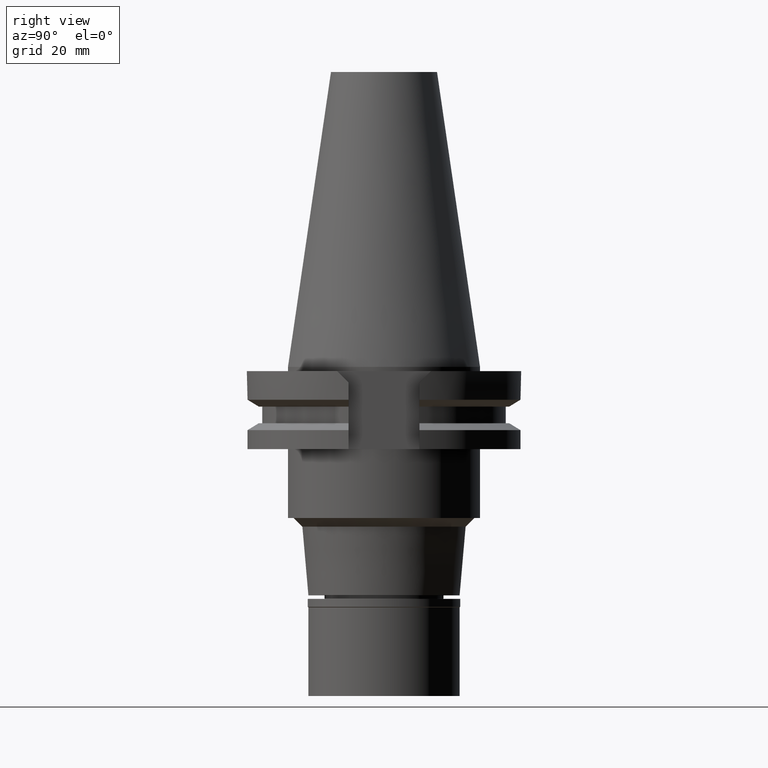
[diagram: clean part render]
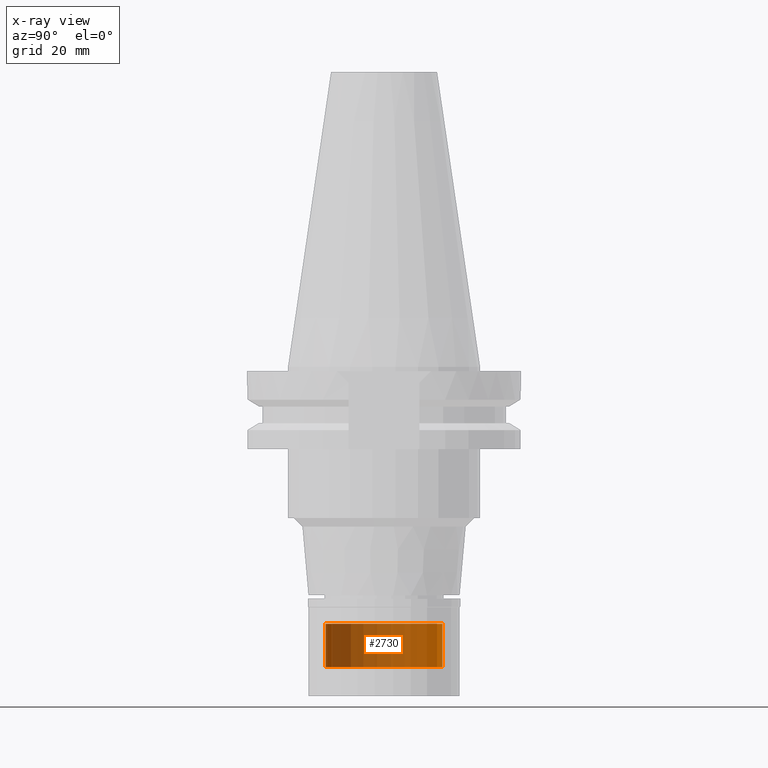
[diagram: x-ray — body ghosted, one internal face saturated and labeled with its STEP entity id]
A machine part, right view, then the same camera in x-ray: the body is ghosted and one INTERNAL B-rep face — a face not visible from any outside direction — is saturated and labeled: STEP entity #2730.
In plain terms, the highlighted cylindrical surface (partial cylindrical patch) has radius 13.5 mm, axis along (0, 0, -1).
Its self-contained STEP definition (entity closure, byte-faithful):
#18 = VERTEX_POINT ( 'NONE', #2397 ) ;
#111 = VERTEX_POINT ( 'NONE', #1337 ) ;
#113 = CARTESIAN_POINT ( 'NONE',  ( 0.0000000000000000000, 13.50000000000000000, -59.50000000000000000 ) ) ;
#217 = DIRECTION ( 'NONE',  ( 0.0000000000000000000, 1.000000000000000000, 0.0000000000000000000 ) ) ;
#281 = ORIENTED_EDGE ( 'NONE', *, *, #2851, .T. ) ;
#339 = CARTESIAN_POINT ( 'NONE',  ( 0.0000000000000000000, 2.144815787856999694E-14, 75.13750000000000284 ) ) ;
#424 = CARTESIAN_POINT ( 'NONE',  ( 0.0000000000000000000, 13.50000000000000000, -59.50000000000000000 ) ) ;
#541 = CARTESIAN_POINT ( 'NONE',  ( 0.0000000000000000000, -13.50000000000000000, -59.50000000000000000 ) ) ;
#603 = DIRECTION ( 'NONE',  ( 0.0000000000000000000, -1.000000000000000000, 0.0000000000000000000 ) ) ;
#734 = DIRECTION ( 'NONE',  ( 0.0000000000000000000, 0.0000000000000000000, 1.000000000000000000 ) ) ;
#880 = DIRECTION ( 'NONE',  ( 0.0000000000000000000, 0.0000000000000000000, -1.000000000000000000 ) ) ;
#952 = ORIENTED_EDGE ( 'NONE', *, *, #1020, .T. ) ;
#959 = AXIS2_PLACEMENT_3D ( 'NONE', #339, #880, #603 ) ;
#996 = AXIS2_PLACEMENT_3D ( 'NONE', #2864, #734, #217 ) ;
#1008 = VECTOR ( 'NONE', #2348, 1000.000000000000000 ) ;
#1020 = EDGE_CURVE ( 'NONE', #18, #111, #2324, .T. ) ;
#1153 = DIRECTION ( 'NONE',  ( 0.0000000000000000000, 0.0000000000000000000, -1.000000000000000000 ) ) ;
#1179 = EDGE_CURVE ( 'NONE', #2033, #3258, #1259, .T. ) ;
#1259 = CIRCLE ( 'NONE', #2683, 13.50000000000000000 ) ;
#1337 = CARTESIAN_POINT ( 'NONE',  ( 0.0000000000000000000, -13.50000000000000000, -69.50000000000000000 ) ) ;
#1344 = FACE_OUTER_BOUND ( 'NONE', #2019, .T. ) ;
#1584 = EDGE_CURVE ( 'NONE', #2033, #111, #3122, .T. ) ;
#2011 = ORIENTED_EDGE ( 'NONE', *, *, #1584, .F. ) ;
#2019 = EDGE_LOOP ( 'NONE', ( #952, #2011, #2576, #281 ) ) ;
#2033 = VERTEX_POINT ( 'NONE', #541 ) ;
#2044 = CARTESIAN_POINT ( 'NONE',  ( 0.0000000000000000000, -13.50000000000000000, -59.50000000000000000 ) ) ;
#2134 = CARTESIAN_POINT ( 'NONE',  ( 0.0000000000000000000, 2.144815787856999694E-14, -59.50000000000000000 ) ) ;
#2230 = VECTOR ( 'NONE', #1153, 1000.000000000000000 ) ;
#2324 = CIRCLE ( 'NONE', #996, 13.50000000000000000 ) ;
#2348 = DIRECTION ( 'NONE',  ( 0.0000000000000000000, 0.0000000000000000000, -1.000000000000000000 ) ) ;
#2397 = CARTESIAN_POINT ( 'NONE',  ( 0.0000000000000000000, 13.50000000000000000, -69.50000000000000000 ) ) ;
#2466 = LINE ( 'NONE', #113, #2230 ) ;
#2576 = ORIENTED_EDGE ( 'NONE', *, *, #1179, .T. ) ;
#2683 = AXIS2_PLACEMENT_3D ( 'NONE', #2134, #2952, #3167 ) ;
#2695 = CYLINDRICAL_SURFACE ( 'NONE', #959, 13.50000000000000000 ) ;
#2730 = ADVANCED_FACE ( 'NONE', ( #1344 ), #2695, .T. ) ;
#2851 = EDGE_CURVE ( 'NONE', #3258, #18, #2466, .T. ) ;
#2864 = CARTESIAN_POINT ( 'NONE',  ( 0.0000000000000000000, 2.144815787856999694E-14, -69.50000000000000000 ) ) ;
#2952 = DIRECTION ( 'NONE',  ( 0.0000000000000000000, 0.0000000000000000000, -1.000000000000000000 ) ) ;
#3122 = LINE ( 'NONE', #2044, #1008 ) ;
#3167 = DIRECTION ( 'NONE',  ( 0.0000000000000000000, -1.000000000000000000, 0.0000000000000000000 ) ) ;
#3258 = VERTEX_POINT ( 'NONE', #424 ) ;